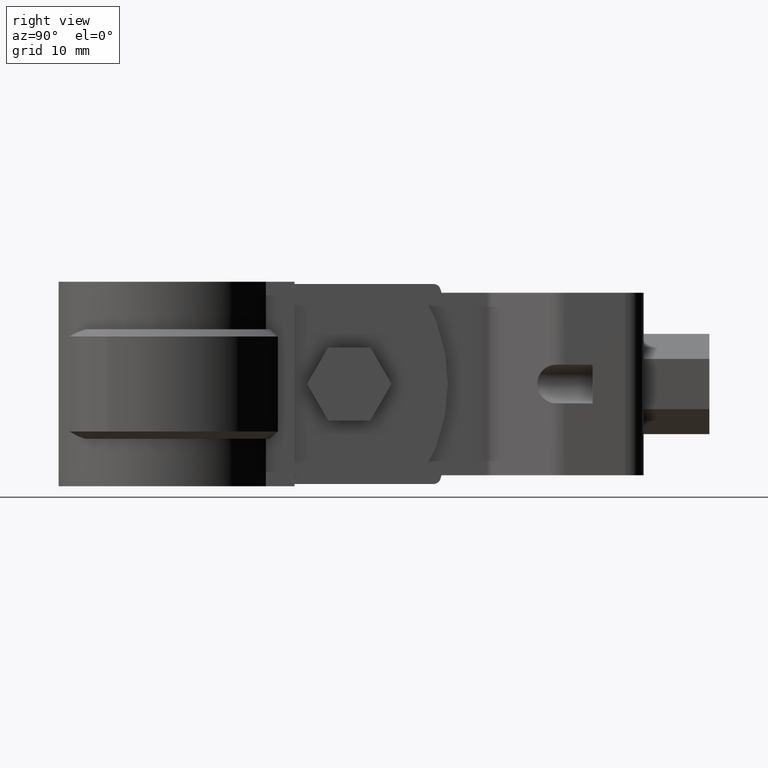
[diagram: clean part render]
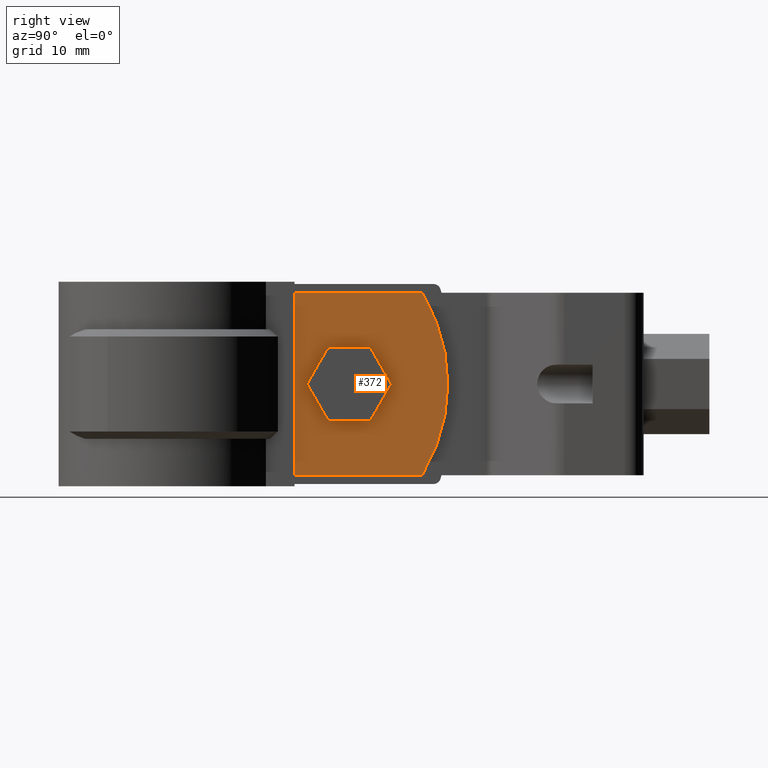
[diagram: same view with one face highlighted and labeled with its STEP entity id]
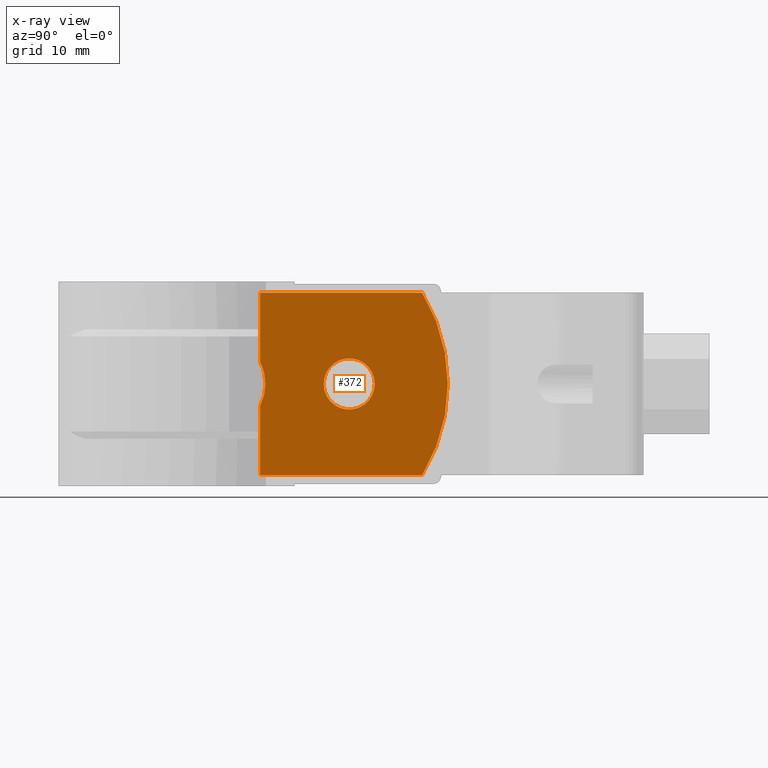
[diagram: x-ray of the same camera — body ghosted, the highlighted face saturated]
A machine part, right view. The second image highlights one B-rep face of the part: STEP entity #372.
The next image is the same camera in x-ray: the body ghosted, the highlighted face saturated — about 0% of this face is hidden behind the body in this view.
In plain terms, the highlighted planar face has unit normal (-1, 0, 0).
Its self-contained STEP definition (entity closure, byte-faithful):
#372 = ADVANCED_FACE( '', ( #708, #709 ), #710, .F. );
#708 = FACE_BOUND( '', #1456, .T. );
#709 = FACE_OUTER_BOUND( '', #1457, .T. );
#710 = PLANE( '', #1458 );
#1456 = EDGE_LOOP( '', ( #2927 ) );
#1457 = EDGE_LOOP( '', ( #2928, #2929, #2930, #2931, #2932, #2933 ) );
#1458 = AXIS2_PLACEMENT_3D( '', #2934, #2935, #2936 );
#2927 = ORIENTED_EDGE( '', *, *, #6346, .F. );
#2928 = ORIENTED_EDGE( '', *, *, #6334, .F. );
#2929 = ORIENTED_EDGE( '', *, *, #6345, .T. );
#2930 = ORIENTED_EDGE( '', *, *, #6347, .T. );
#2931 = ORIENTED_EDGE( '', *, *, #6348, .F. );
#2932 = ORIENTED_EDGE( '', *, *, #6314, .F. );
#2933 = ORIENTED_EDGE( '', *, *, #6342, .T. );
#2934 = CARTESIAN_POINT( '', ( 5.10000000000000, 12.7485724691042, 0.000000000000000 ) );
#2935 = DIRECTION( '', ( -1.00000000000000, 6.12303176911189E-017, 0.000000000000000 ) );
#2936 = DIRECTION( '', ( 6.12303176911189E-017, 1.00000000000000, 0.000000000000000 ) );
#6314 = EDGE_CURVE( '', #7242, #7244, #7245, .T. );
#6334 = EDGE_CURVE( '', #7279, #7273, #7281, .T. );
#6342 = EDGE_CURVE( '', #7242, #7273, #7295, .T. );
#6345 = EDGE_CURVE( '', #7279, #7298, #7300, .T. );
#6346 = EDGE_CURVE( '', #7301, #7301, #7302, .F. );
#6347 = EDGE_CURVE( '', #7298, #7303, #7304, .T. );
#6348 = EDGE_CURVE( '', #7244, #7303, #7305, .T. );
#7242 = VERTEX_POINT( '', #8855 );
#7244 = VERTEX_POINT( '', #8857 );
#7245 = LINE( '', #8858, #8859 );
#7273 = VERTEX_POINT( '', #8960 );
#7279 = VERTEX_POINT( '', #9020 );
#7281 = B_SPLINE_CURVE_WITH_KNOTS( '', 3, ( #9035, #9036, #9037, #9038, #9039, #9040, #9041, #9042, #9043, #9044, #9045, #9046, #9047 ), .UNSPECIFIED., .F., .F., ( 4, 2, 2, 1, 2, 2, 4 ), ( 3.87895961444886E-018, 0.00154494556300112, 0.00231741834450167, 0.00308989112600222, 0.00386236390750278, 0.00463483668900333, 0.00617978225200444 ), .UNSPECIFIED. );
#7295 = LINE( '', #9158, #9159 );
#7298 = VERTEX_POINT( '', #9163 );
#7300 = LINE( '', #9165, #9166 );
#7301 = VERTEX_POINT( '', #9167 );
#7302 = CIRCLE( '', #9168, 3.50000000000000 );
#7303 = VERTEX_POINT( '', #9169 );
#7304 = LINE( '', #9170, #9171 );
#7305 = CIRCLE( '', #9172, 24.0000000000000 );
#8855 = CARTESIAN_POINT( '', ( 5.10000000000000, 12.7485724691042, 0.000000000000000 ) );
#8857 = CARTESIAN_POINT( '', ( 5.10000000000001, 34.9458159107832, 3.95474120975881E-031 ) );
#8858 = CARTESIAN_POINT( '', ( 5.10000000000000, 12.7485724691042, 0.000000000000000 ) );
#8859 = VECTOR( '', #12314, 1000.00000000000 );
#8960 = CARTESIAN_POINT( '', ( 5.10000000000000, 12.7485724691042, -9.51620483456165 ) );
#9020 = CARTESIAN_POINT( '', ( 5.10000000000000, 12.7485724691042, -15.4837951654384 ) );
#9035 = CARTESIAN_POINT( '', ( 5.10000000000000, 12.7485724691042, -15.4837951654384 ) );
#9036 = CARTESIAN_POINT( '', ( 5.10000000000000, 12.9866172798646, -15.0202484555752 ) );
#9037 = CARTESIAN_POINT( '', ( 5.10000000000000, 13.1665509757478, -14.5373748987153 ) );
#9038 = CARTESIAN_POINT( '', ( 5.10000000000000, 13.3513480558411, -13.7847604838031 ) );
#9039 = CARTESIAN_POINT( '', ( 5.09999999999999, 13.3986927600009, -13.5273948064502 ) );
#9040 = CARTESIAN_POINT( '', ( 5.09999999999999, 13.4614587026653, -13.0136804453863 ) );
#9041 = CARTESIAN_POINT( '', ( 5.09999999999985, 13.4929650150004, -12.5002121291173 ) );
#9042 = CARTESIAN_POINT( '', ( 5.09999999999999, 13.4615135256454, -11.9872393541981 ) );
#9043 = CARTESIAN_POINT( '', ( 5.09999999999999, 13.3989828798544, -11.4745112035625 ) );
#9044 = CARTESIAN_POINT( '', ( 5.10000000000000, 13.3517303698018, -11.2170208286787 ) );
#9045 = CARTESIAN_POINT( '', ( 5.10000000000000, 13.1667583011510, -10.4630226674895 ) );
#9046 = CARTESIAN_POINT( '', ( 5.10000000000000, 12.9866118316508, -9.97974093507114 ) );
#9047 = CARTESIAN_POINT( '', ( 5.10000000000000, 12.7485724691042, -9.51620483456165 ) );
#9158 = CARTESIAN_POINT( '', ( 5.10000000000000, 12.7485724691042, 0.000000000000000 ) );
#9159 = VECTOR( '', #12333, 1000.00000000000 );
#9163 = CARTESIAN_POINT( '', ( 5.10000000000000, 12.7485724691042, -25.0000000000000 ) );
#9165 = CARTESIAN_POINT( '', ( 5.10000000000000, 12.7485724691042, 0.000000000000000 ) );
#9166 = VECTOR( '', #12338, 1000.00000000000 );
#9167 = CARTESIAN_POINT( '', ( 5.10000000000000, 21.4580146622353, -12.5000000000000 ) );
#9168 = AXIS2_PLACEMENT_3D( '', #12339, #12340, #12341 );
#9169 = CARTESIAN_POINT( '', ( 5.10000000000001, 34.9458159107832, -25.0000000000000 ) );
#9170 = CARTESIAN_POINT( '', ( 5.10000000000000, 12.7485724691042, -25.0000000000000 ) );
#9171 = VECTOR( '', #12342, 1000.00000000000 );
#9172 = AXIS2_PLACEMENT_3D( '', #12343, #12344, #12345 );
#12314 = DIRECTION( '', ( 6.12303176911189E-017, 1.00000000000000, 0.000000000000000 ) );
#12333 = DIRECTION( '', ( 0.000000000000000, 0.000000000000000, -1.00000000000000 ) );
#12338 = DIRECTION( '', ( 0.000000000000000, 0.000000000000000, -1.00000000000000 ) );
#12339 = CARTESIAN_POINT( '', ( 5.10000000000000, 24.9580146622353, -12.5000000000000 ) );
#12340 = DIRECTION( '', ( -1.00000000000000, 6.12303176911189E-017, 0.000000000000000 ) );
#12341 = DIRECTION( '', ( -6.12303176911189E-017, -1.00000000000000, 0.000000000000000 ) );
#12342 = DIRECTION( '', ( 6.12303176911189E-017, 1.00000000000000, 0.000000000000000 ) );
#12343 = CARTESIAN_POINT( '', ( 5.10000000000001, 14.4580146622353, -12.5000000000000 ) );
#12344 = DIRECTION( '', ( -1.00000000000000, 6.12303176911189E-017, 0.000000000000000 ) );
#12345 = DIRECTION( '', ( -6.12303176911189E-017, -1.00000000000000, 0.000000000000000 ) );